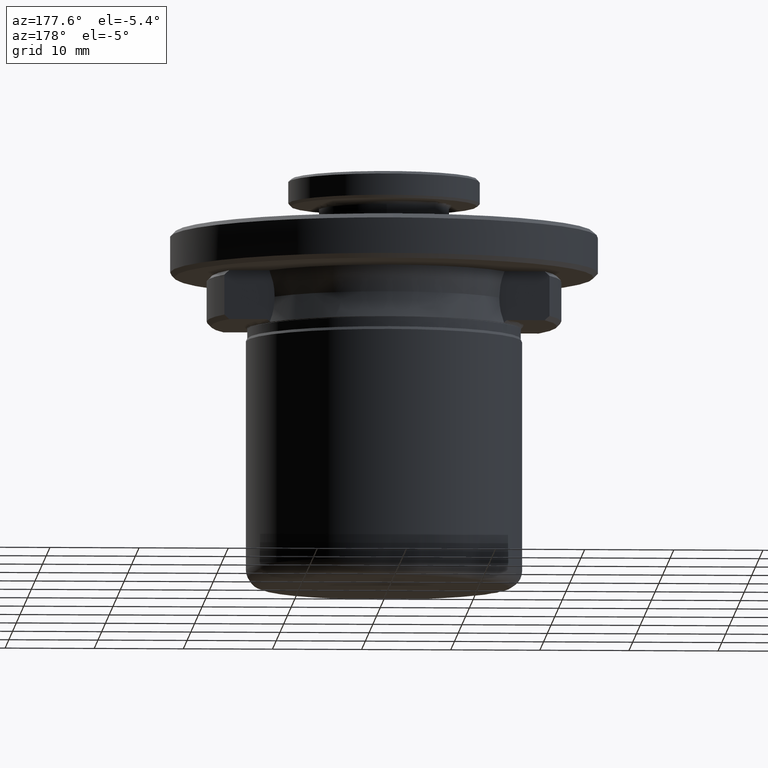
[diagram: clean part render]
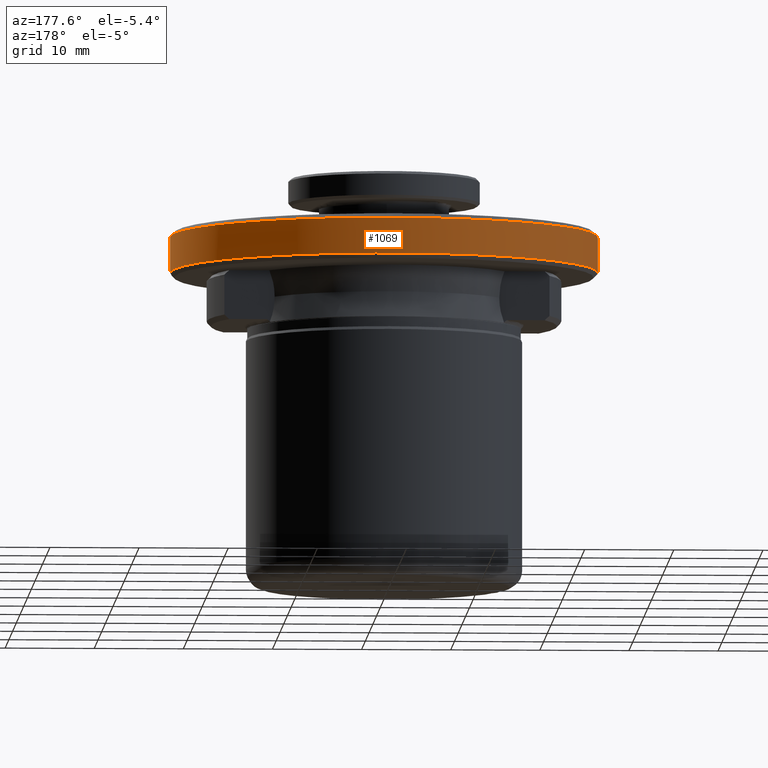
[diagram: same view with one face highlighted and labeled with its STEP entity id]
A machine part, auxiliary view. The second image highlights one B-rep face of the part: STEP entity #1069.
In plain terms, the highlighted cylindrical surface (partial cylindrical patch) has radius 24 mm, axis along (0, 0, -1).
Its self-contained STEP definition (entity closure, byte-faithful):
#15 = EDGE_CURVE ( 'NONE', #577, #530, #1369, .T. ) ;
#34 = CYLINDRICAL_SURFACE ( 'NONE', #1180, 24.00000000000000000 ) ;
#59 = CIRCLE ( 'NONE', #524, 24.00000000000000000 ) ;
#69 = CARTESIAN_POINT ( 'NONE',  ( 24.00000000000000000, 2.939152317953647900E-015, 11.93848561500000100 ) ) ;
#134 = DIRECTION ( 'NONE',  ( 0.0000000000000000000, 0.0000000000000000000, 1.000000000000000000 ) ) ;
#160 = DIRECTION ( 'NONE',  ( -0.0000000000000000000, -0.0000000000000000000, 1.000000000000000000 ) ) ;
#171 = ORIENTED_EDGE ( 'NONE', *, *, #899, .F. ) ;
#192 = DIRECTION ( 'NONE',  ( -0.0000000000000000000, -0.0000000000000000000, 1.000000000000000000 ) ) ;
#217 = VECTOR ( 'NONE', #968, 1000.000000000000000 ) ;
#320 = ORIENTED_EDGE ( 'NONE', *, *, #788, .T. ) ;
#352 = CARTESIAN_POINT ( 'NONE',  ( 0.0000000000000000000, 0.0000000000000000000, 11.93848561500000100 ) ) ;
#374 = AXIS2_PLACEMENT_3D ( 'NONE', #352, #192, #1242 ) ;
#524 = AXIS2_PLACEMENT_3D ( 'NONE', #859, #134, #1448 ) ;
#530 = VERTEX_POINT ( 'NONE', #1758 ) ;
#577 = VERTEX_POINT ( 'NONE', #1279 ) ;
#590 = VECTOR ( 'NONE', #1845, 1000.000000000000000 ) ;
#668 = VERTEX_POINT ( 'NONE', #1382 ) ;
#700 = EDGE_LOOP ( 'NONE', ( #171, #1789, #320, #1267, #1082 ) ) ;
#725 = CARTESIAN_POINT ( 'NONE',  ( 0.0000000000000000000, 24.00000000000000000, 11.93848561500000100 ) ) ;
#752 = CARTESIAN_POINT ( 'NONE',  ( 0.0000000000000000000, 0.0000000000000000000, 11.93848561500000100 ) ) ;
#788 = EDGE_CURVE ( 'NONE', #668, #530, #59, .T. ) ;
#794 = VERTEX_POINT ( 'NONE', #725 ) ;
#797 = CARTESIAN_POINT ( 'NONE',  ( 24.00000000000000000, 2.939152317953647900E-015, 11.93848561500000100 ) ) ;
#859 = CARTESIAN_POINT ( 'NONE',  ( 0.0000000000000000000, 0.0000000000000000000, 7.938485615000101500 ) ) ;
#864 = CARTESIAN_POINT ( 'NONE',  ( 0.0000000000000000000, 0.0000000000000000000, 11.93848561500000100 ) ) ;
#871 = FACE_OUTER_BOUND ( 'NONE', #700, .T. ) ;
#899 = EDGE_CURVE ( 'NONE', #1487, #794, #1061, .T. ) ;
#968 = DIRECTION ( 'NONE',  ( 0.0000000000000000000, 0.0000000000000000000, -1.000000000000000000 ) ) ;
#1061 = CIRCLE ( 'NONE', #1596, 24.00000000000000000 ) ;
#1069 = ADVANCED_FACE ( 'NONE', ( #871 ), #34, .T. ) ;
#1082 = ORIENTED_EDGE ( 'NONE', *, *, #1786, .F. ) ;
#1180 = AXIS2_PLACEMENT_3D ( 'NONE', #864, #1305, #1590 ) ;
#1242 = DIRECTION ( 'NONE',  ( -1.000000000000000000, 0.0000000000000000000, 0.0000000000000000000 ) ) ;
#1267 = ORIENTED_EDGE ( 'NONE', *, *, #15, .F. ) ;
#1279 = CARTESIAN_POINT ( 'NONE',  ( -24.00000000000000000, 0.0000000000000000000, 11.93848561500000100 ) ) ;
#1305 = DIRECTION ( 'NONE',  ( 0.0000000000000000000, 0.0000000000000000000, -1.000000000000000000 ) ) ;
#1350 = LINE ( 'NONE', #797, #217 ) ;
#1369 = LINE ( 'NONE', #1800, #590 ) ;
#1382 = CARTESIAN_POINT ( 'NONE',  ( 24.00000000000000000, 2.939152317953647900E-015, 7.938485615000101500 ) ) ;
#1448 = DIRECTION ( 'NONE',  ( 1.000000000000000000, 0.0000000000000000000, -4.192248400277283500E-015 ) ) ;
#1487 = VERTEX_POINT ( 'NONE', #69 ) ;
#1590 = DIRECTION ( 'NONE',  ( -1.000000000000000000, 0.0000000000000000000, 0.0000000000000000000 ) ) ;
#1596 = AXIS2_PLACEMENT_3D ( 'NONE', #752, #160, #1720 ) ;
#1720 = DIRECTION ( 'NONE',  ( -1.000000000000000000, 0.0000000000000000000, 0.0000000000000000000 ) ) ;
#1758 = CARTESIAN_POINT ( 'NONE',  ( -24.00000000000000000, 0.0000000000000000000, 7.938485615000101500 ) ) ;
#1786 = EDGE_CURVE ( 'NONE', #794, #577, #1922, .T. ) ;
#1789 = ORIENTED_EDGE ( 'NONE', *, *, #1843, .T. ) ;
#1800 = CARTESIAN_POINT ( 'NONE',  ( -24.00000000000000000, 0.0000000000000000000, 11.93848561500000100 ) ) ;
#1843 = EDGE_CURVE ( 'NONE', #1487, #668, #1350, .T. ) ;
#1845 = DIRECTION ( 'NONE',  ( 0.0000000000000000000, 0.0000000000000000000, -1.000000000000000000 ) ) ;
#1922 = CIRCLE ( 'NONE', #374, 24.00000000000000000 ) ;